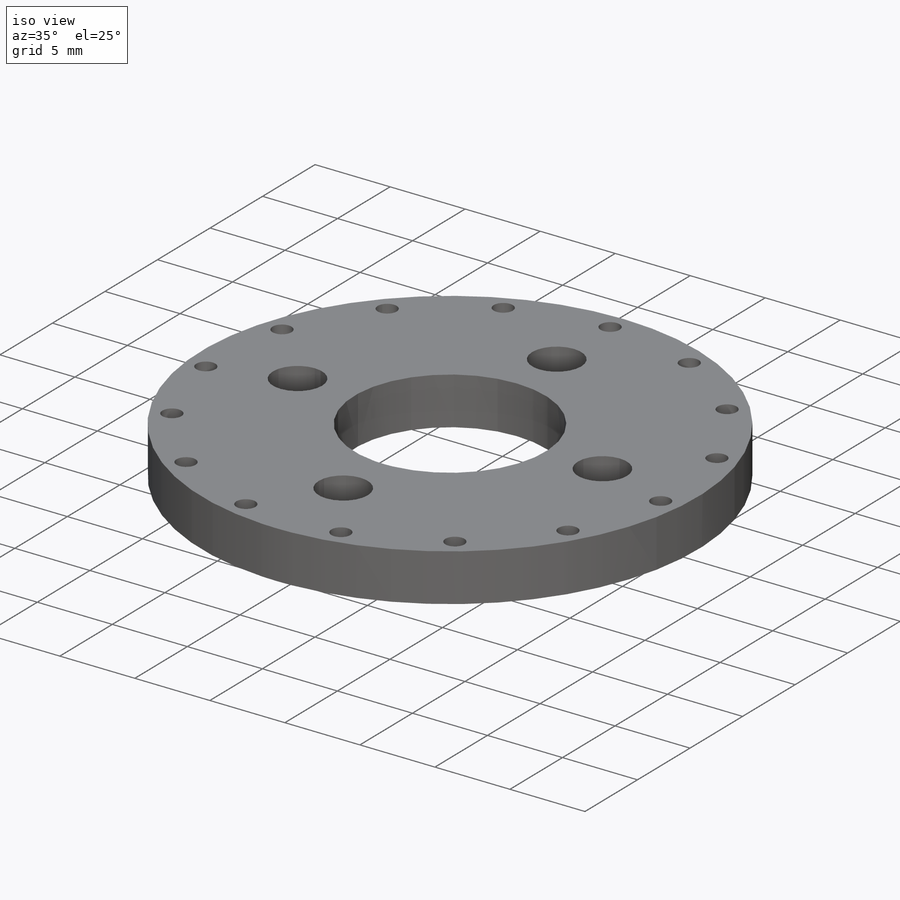
[diagram: iso view]
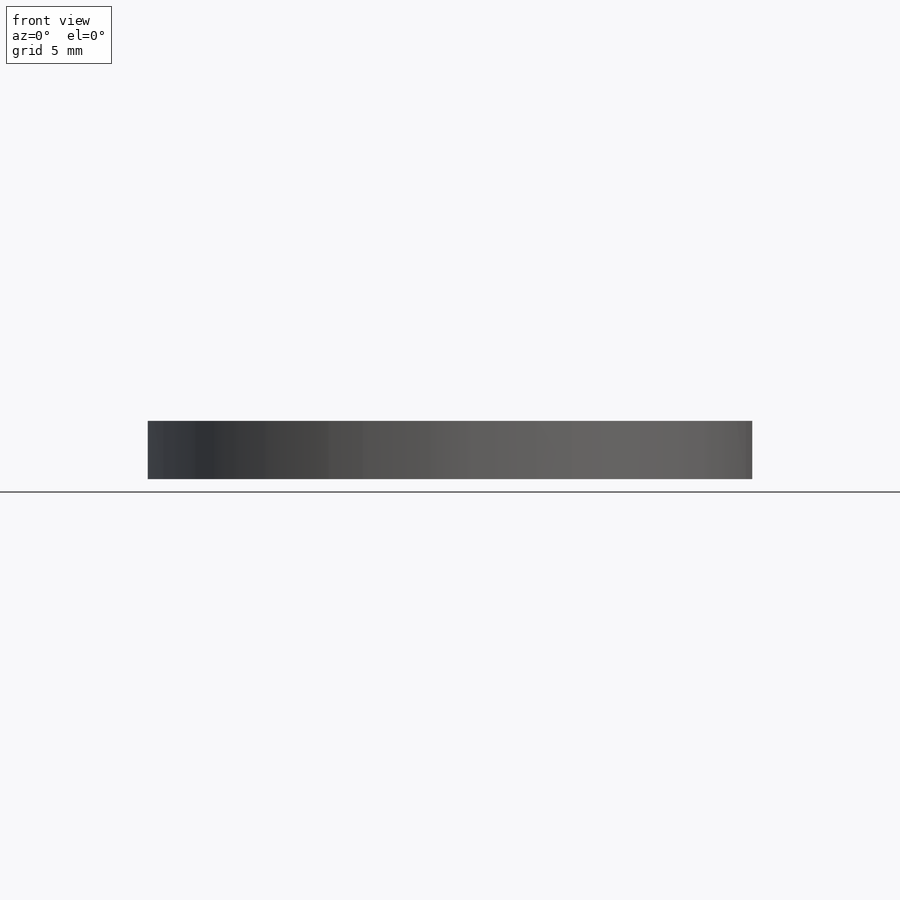
[diagram: front view]
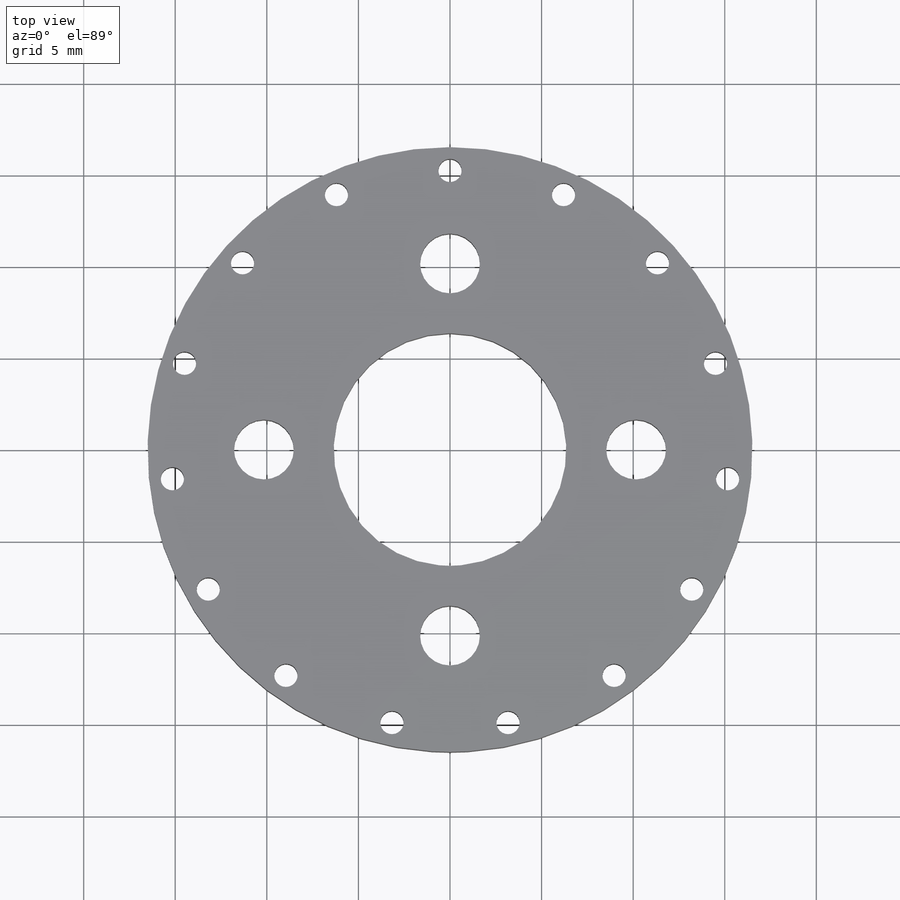
[diagram: top view]
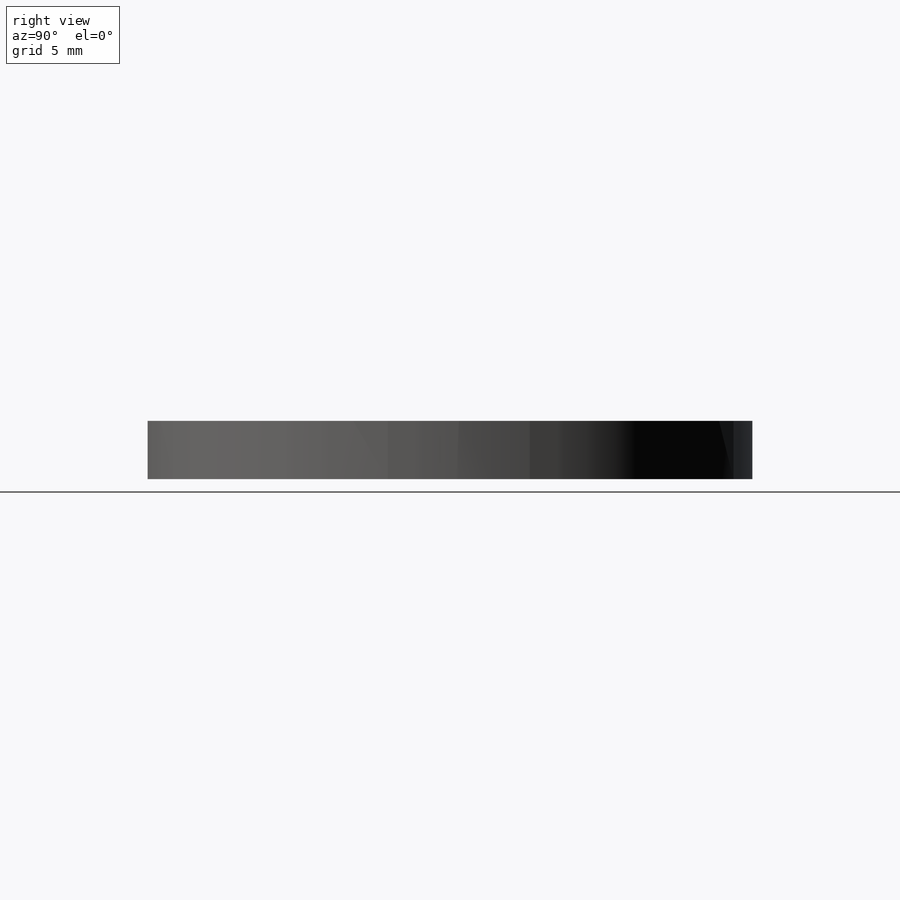
[diagram: right view]
SOLIDWORKS PART (.sldprt)
format: sldprt  version: not decoded by parser v0  size: 193,024 bytes
history: native  units: mm
features: sketch x4, pattern_circular x2, material x1, extrude x1, hole x1, cut_extrude x1 (+11 scaffold rows collapsed)
feature tree (21):
  scaffold x11  (default folders/planes/origin — collapsed)
  material  "Material <not specified>"
  sketch  "Sketch1"  dims[c1.D1=33.02mm c1.D2=12.7mm c2.D1=31.75mm c2.D2=31.75mm]
  extrude  "Boss-Extrude1"  Depth=3.175mm
  hole  "#4 Clearance Hole1"  Diameter=3.2639mm Depth=10.16mm
  sketch  "Sketch3"  dims[D1=10.16mm]
  sketch  "Sketch2"  dims[hole-wizard template sketch: 50 standard entries collapsed; hole parameters above]
  pattern_circular  "CirPattern1"  Count=4 Angle=90deg
  sketch  "Sketch4"  dims[D1=1.27mm D2=15.24mm]
  cut_extrude  "Cut-Extrude1"  Depth=3.175mm
  pattern_circular  "CirPattern2"  Count=15 Angle=360deg
decode coverage: 9 of 9 modeling features carry decoded parameters
note: ~ marks probable driven/reference dimensions
note: suppression state not decoded; provenance and decode notes live in map.json
